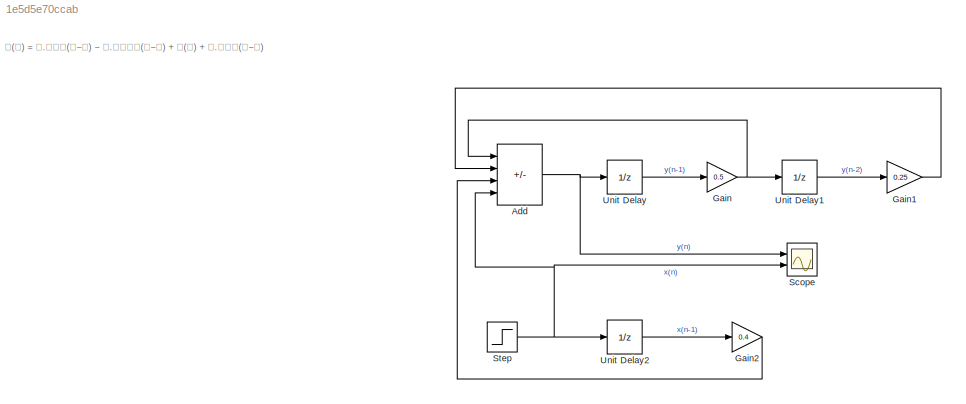
MODEL slx_1e5d5e70ccab
KIND model
CONFIG AbsTol = auto
CONFIG EnableMultiTasking = off
CONFIG FixedStep = auto
CONFIG MaxStep = auto
CONFIG MinStep = auto
CONFIG RelTol = 1e-3
CONFIG SampleTimeConstraint = Unconstrained
CONFIG Solver = VariableStepAuto
CONFIG SolverName = VariableStepAuto
CONFIG StartTime = 0.0
CONFIG StopTime = 10.0
BLOCK [Sum] Add
  IconShape = rectangular
  Inputs = +-++
  Ports = [4, 1]
BLOCK [Gain] Gain
  Gain = 0.5
BLOCK [Gain] Gain1
  Gain = 0.25
BLOCK [Gain] Gain2
  Gain = 0.4
BLOCK [Scope] Scope
  Floating = off
  NumInputPorts = 2
  Ports = [2]
  ScopeSpecificationString = Simulink.scopes.TimeScopeBlockCfg('CurrentConfiguration', extmgr.ConfigurationSet(extmgr.Configuration('Core','General UI',true),extmgr.Configuration('Core','Source UI',true),extmgr.Configuration('Sources','WiredSimulink',true),extmgr.Configuration('Visuals','Time Domain',true,'SerializedDisplays',{struct('MinYLimReal','-0.28437','MaxYLimReal','2.55937','YLabelReal','','MinYLimMag','0.00000','MaxY...<+2000ch>
BLOCK [Step] Step
  SampleTime = 0.0001
BLOCK [UnitDelay] Unit Delay
  HasFrameUpgradeWarning = on
  SampleTime = -1
BLOCK [UnitDelay] Unit Delay1
  HasFrameUpgradeWarning = on
  SampleTime = -1
BLOCK [UnitDelay] Unit Delay2
  HasFrameUpgradeWarning = on
  SampleTime = -1
ANNOTATION (root): 𝐲(𝐧) = 𝟎.𝟓∗𝐲(𝐧−𝟏) − 𝟎.𝟐𝟓∗𝐲(𝐧−𝟐) + 𝐱(𝐧) + 𝟎.𝟒∗𝐱(𝐧−𝟏)
NET Add:1 -> Scope:1, Unit Delay:1
LINE Gain1:1 -> Add:2
LINE Gain2:1 -> Add:3
NET Gain:1 -> Add:1, Unit Delay1:1
NET Step:1 -> Add:4, Scope:2, Unit Delay2:1
LINE Unit Delay1:1 -> Gain1:1
LINE Unit Delay2:1 -> Gain2:1
LINE Unit Delay:1 -> Gain:1
note: NET lines group one-source signal fan-out (src -> all destinations, sorted); 1:1 wires keep LINE
